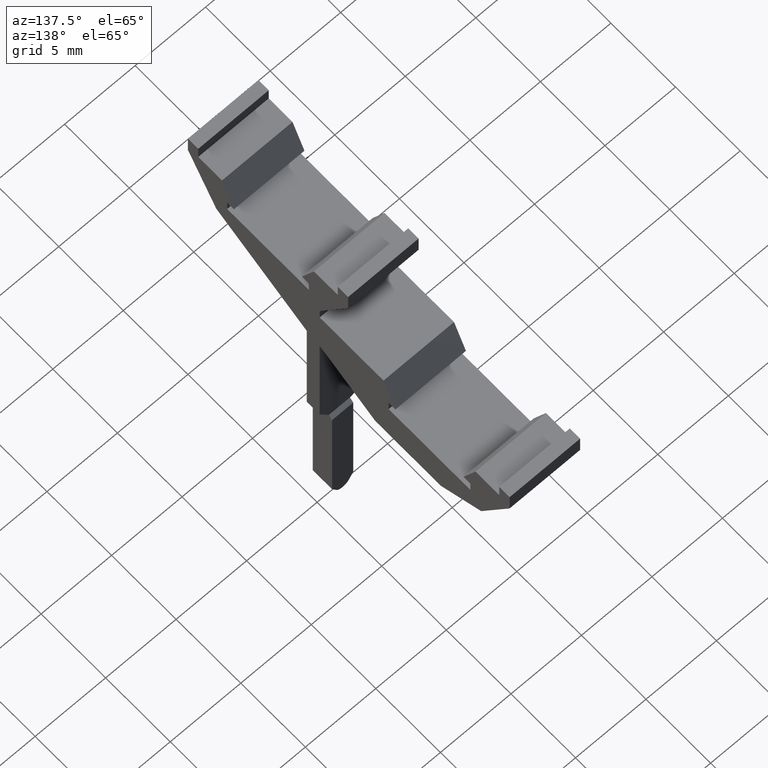
[diagram: clean part render]
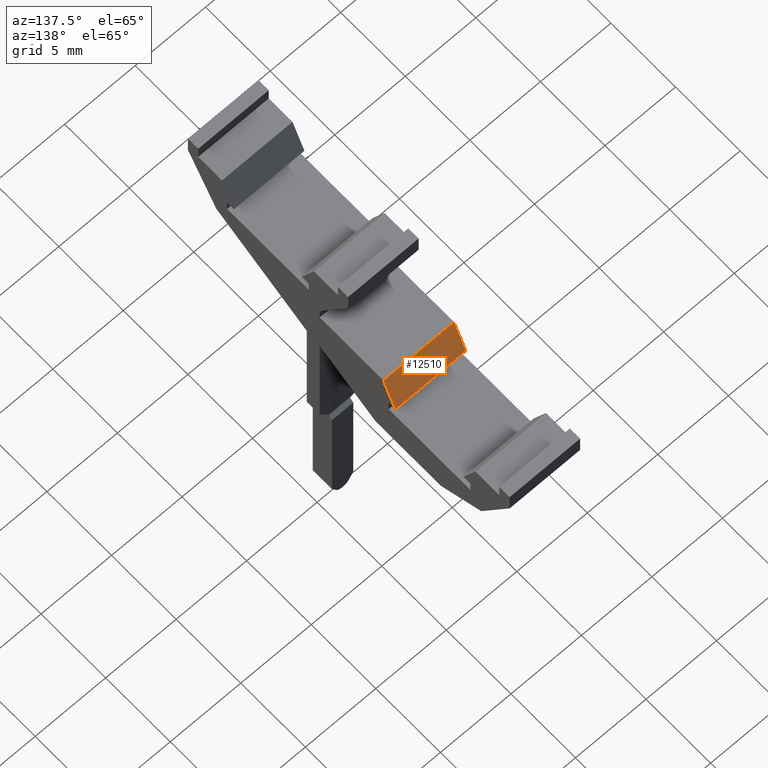
[diagram: same view with one face highlighted and labeled with its STEP entity id]
A machine part, auxiliary view. The second image highlights one B-rep face of the part: STEP entity #12510.
In plain terms, the highlighted planar face has unit normal (0, 0.9155, 0.4023).
Its self-contained STEP definition (entity closure, byte-faithful):
#60=CARTESIAN_POINT('',(45.6109327206878,0.,0.));
#70=DIRECTION('',(0.402320578212134,-0.915498854366872,0.));
#80=VECTOR('',#70,1.);
#90=LINE('',#60,#80);
#100=CARTESIAN_POINT('',(40.842845625024,10.85,0.));
#110=VERTEX_POINT('',#100);
#120=CARTESIAN_POINT('',(41.767898467086,8.74499999999999,0.));
#130=VERTEX_POINT('',#120);
#140=EDGE_CURVE('',#110,#130,#90,.T.);
#3310=CARTESIAN_POINT('',(41.767898467086,8.74499999999999,5.));
#3320=VERTEX_POINT('',#3310);
#6190=CARTESIAN_POINT('',(40.842845625024,10.85,5.));
#6200=VERTEX_POINT('',#6190);
#6230=CARTESIAN_POINT('',(45.6109327206878,0.,5.));
#6240=DIRECTION('',(0.402320578212134,-0.915498854366872,0.));
#6250=VECTOR('',#6240,1.);
#6260=LINE('',#6230,#6250);
#6270=EDGE_CURVE('',#6200,#3320,#6260,.T.);
#11810=CARTESIAN_POINT('',(41.767898467086,8.74499999999999,0.));
#11820=DIRECTION('',(0.,0.,-1.));
#11830=VECTOR('',#11820,1.);
#11840=LINE('',#11810,#11830);
#11850=EDGE_CURVE('',#3320,#130,#11840,.T.);
#12350=CARTESIAN_POINT('',(41.1054988543669,10.2523205782122,
6.12323399573677E-17));
#12360=DIRECTION('',(0.915498854366872,0.402320578212134,0.));
#12370=DIRECTION('',(0.402320578212134,-0.915498854366872,0.));
#12380=AXIS2_PLACEMENT_3D('',#12350,#12360,#12370);
#12390=PLANE('',#12380);
#12400=ORIENTED_EDGE('',*,*,#11850,.T.);
#12410=ORIENTED_EDGE('',*,*,#6270,.T.);
#12420=CARTESIAN_POINT('',(40.842845625024,10.85,0.));
#12430=DIRECTION('',(0.,0.,-1.));
#12440=VECTOR('',#12430,1.);
#12450=LINE('',#12420,#12440);
#12460=EDGE_CURVE('',#6200,#110,#12450,.T.);
#12470=ORIENTED_EDGE('',*,*,#12460,.F.);
#12480=ORIENTED_EDGE('',*,*,#140,.F.);
#12490=EDGE_LOOP('',(#12480,#12470,#12410,#12400));
#12500=FACE_OUTER_BOUND('',#12490,.T.);
#12510=ADVANCED_FACE('',(#12500),#12390,.T.);